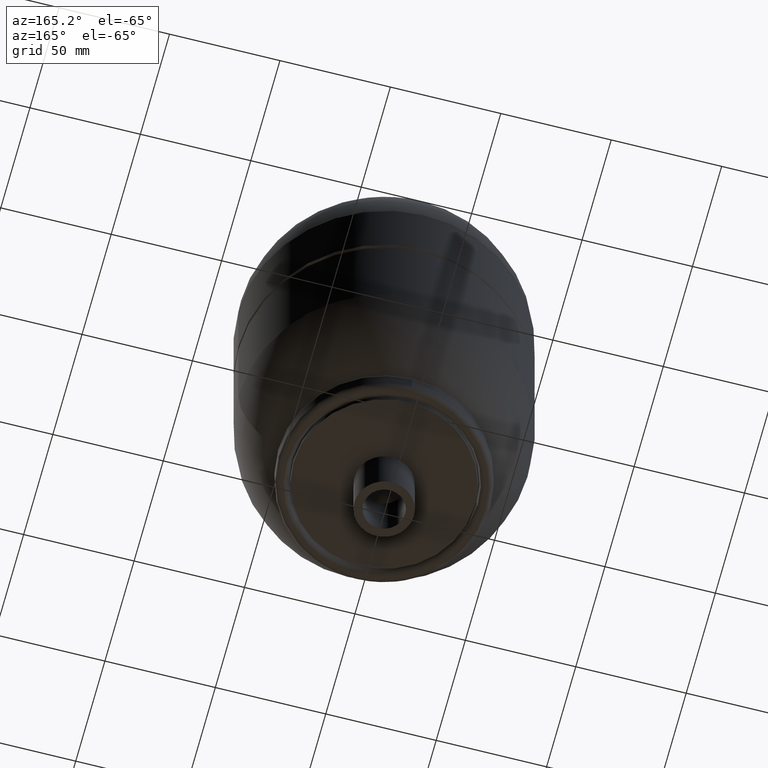
[diagram: clean part render]
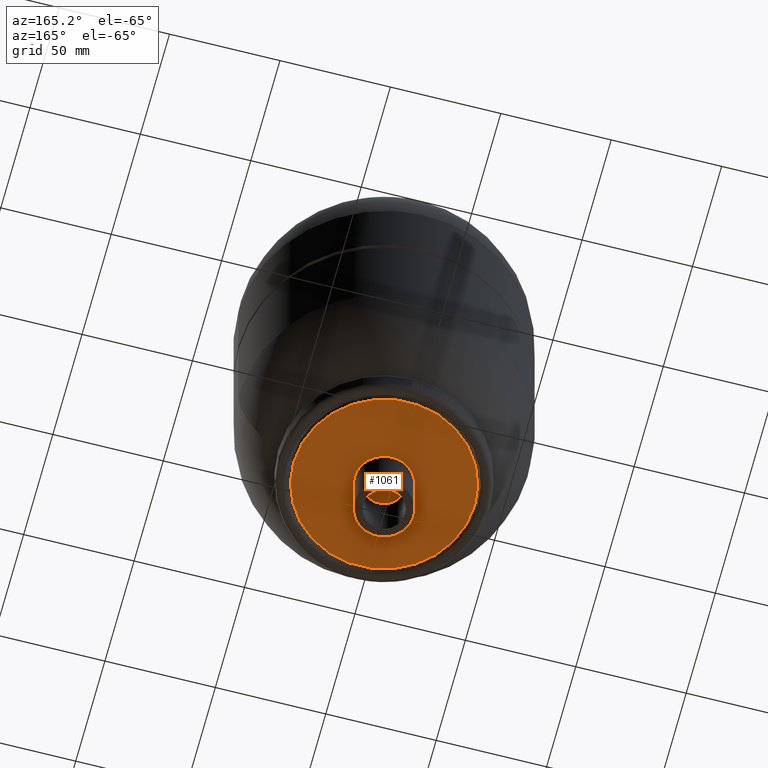
[diagram: same view with one face highlighted and labeled with its STEP entity id]
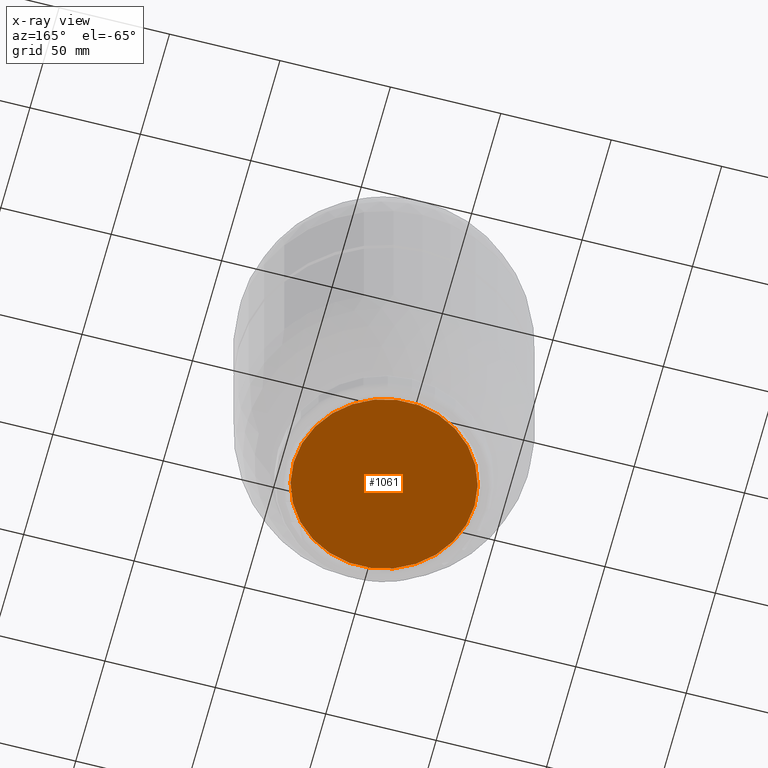
[diagram: x-ray of the same camera — body ghosted, the highlighted face saturated]
A machine part, auxiliary view. The second image highlights one B-rep face of the part: STEP entity #1061.
The next image is the same camera in x-ray: the body ghosted, the highlighted face saturated — about 0% of this face is hidden behind the body in this view.
In plain terms, the highlighted planar face has unit normal (0, 0, -1).
Its self-contained STEP definition (entity closure, byte-faithful):
#781=CARTESIAN_POINT('',(-41.0,0.0,26.0));
#782=VERTEX_POINT('',#781);
#791=CARTESIAN_POINT('',(41.0,-5.020886E-015,25.999999999999986));
#792=VERTEX_POINT('',#791);
#793=CARTESIAN_POINT('',(-1.383528E-030,0.0,25.999999999999993));
#794=DIRECTION('',(0.0,0.0,-1.0));
#795=DIRECTION('',(-1.0,0.0,0.0));
#796=AXIS2_PLACEMENT_3D('',#793,#794,#795);
#797=CIRCLE('',#796,41.0);
#798=EDGE_CURVE('',#792,#782,#797,.T.);
#1042=CARTESIAN_POINT('',(-1.383528E-030,0.0,25.999999999999993));
#1043=DIRECTION('',(0.0,0.0,-1.0));
#1044=DIRECTION('',(-1.0,0.0,0.0));
#1045=AXIS2_PLACEMENT_3D('',#1042,#1043,#1044);
#1046=CIRCLE('',#1045,41.0);
#1047=EDGE_CURVE('',#782,#792,#1046,.T.);
#1052=CARTESIAN_POINT('',(-20.500000000000000,0.0,26.0));
#1053=DIRECTION('',(0.0,0.0,-1.0));
#1054=DIRECTION('',(-1.0,0.0,0.0));
#1055=AXIS2_PLACEMENT_3D('',#1052,#1053,#1054);
#1056=PLANE('',#1055);
#1057=ORIENTED_EDGE('',*,*,#1047,.T.);
#1058=ORIENTED_EDGE('',*,*,#798,.T.);
#1059=EDGE_LOOP('',(#1057,#1058));
#1060=FACE_OUTER_BOUND('',#1059,.T.);
#1061=ADVANCED_FACE('',(#1060),#1056,.T.);